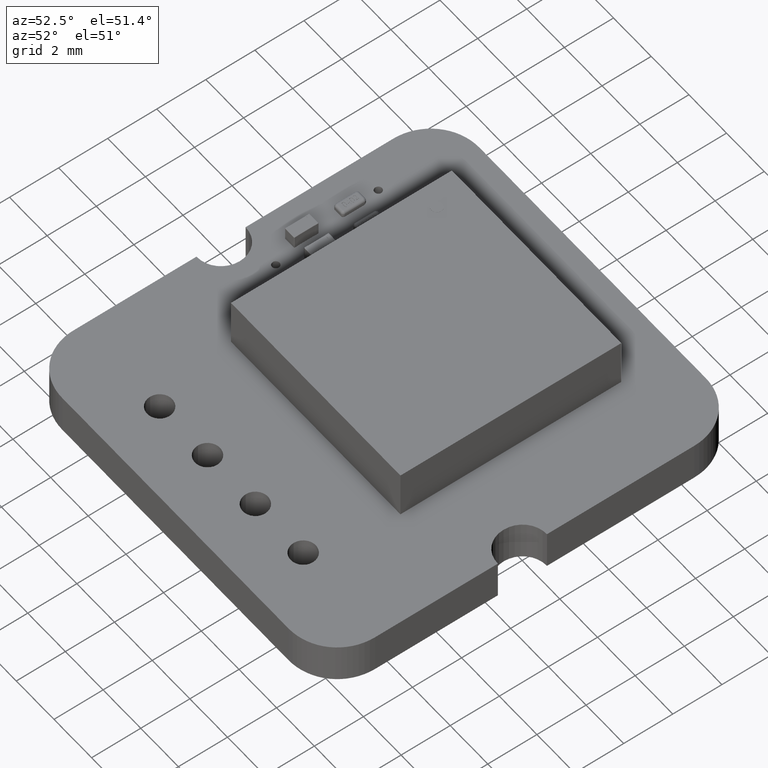
[diagram: clean part render]
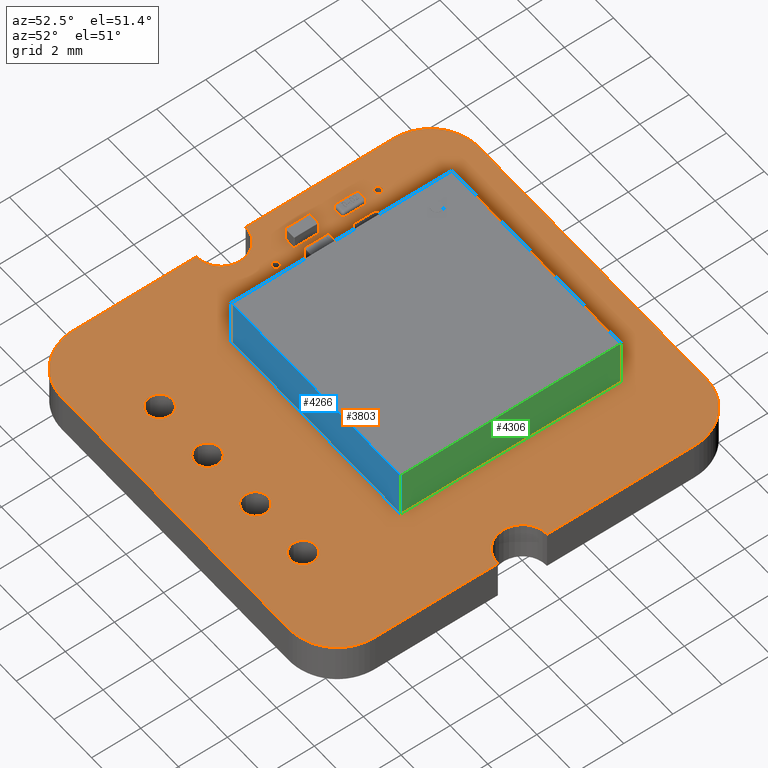
[diagram: same view with three faces highlighted in distinct colors, each labeled with its STEP entity id]
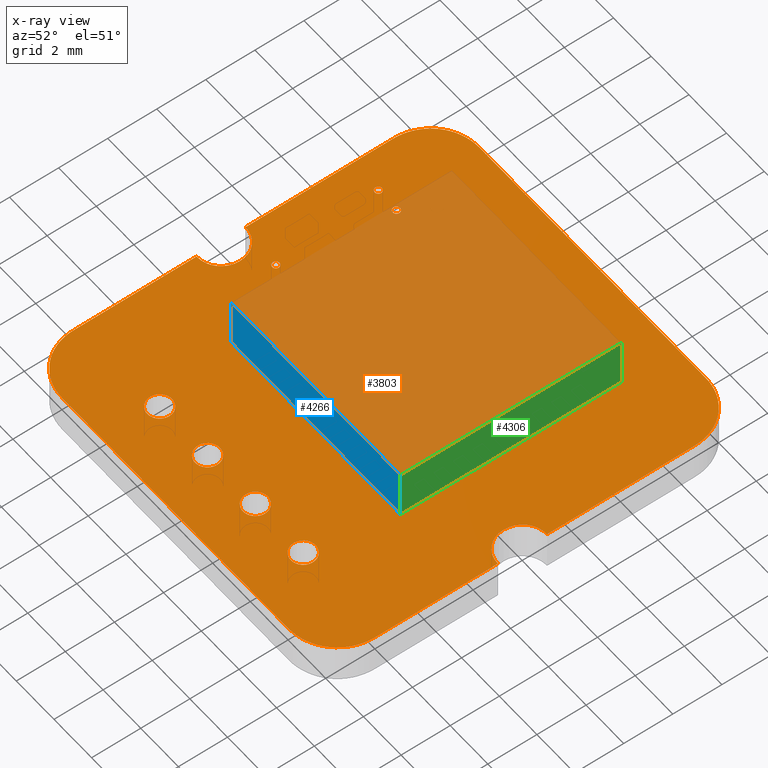
[diagram: x-ray of the same camera — body ghosted, the three highlighted faces saturated]
A machine part, auxiliary view with three faces highlighted in distinct colors.
The next image is the same camera in x-ray (body ghosted, the three faces saturated) — at least one of them is partly hidden behind the body in this view.
Their STEP definitions:

[orange] entity #3803 — the highlighted planar face has unit normal (0, 0, -1).
#55 = VERTEX_POINT('',#56);
#56 = CARTESIAN_POINT('',(14.889,-1.669,0.82));
#62 = EDGE_CURVE('',#55,#63,#65,.T.);
#63 = VERTEX_POINT('',#64);
#64 = CARTESIAN_POINT('',(2.889,-1.669,0.82));
#65 = LINE('',#66,#67);
#66 = CARTESIAN_POINT('',(14.889,-1.669,0.82));
#67 = VECTOR('',#68,1.);
#68 = DIRECTION('',(-1.,0.E+000,0.E+000));
#95 = VERTEX_POINT('',#96);
#96 = CARTESIAN_POINT('',(15.09686,-1.6791,0.82));
#102 = EDGE_CURVE('',#95,#55,#103,.T.);
#103 = LINE('',#104,#105);
#104 = CARTESIAN_POINT('',(15.09686,-1.6791,0.82));
#105 = VECTOR('',#106,1.);
#106 = DIRECTION('',(-0.998821572954,4.853313714442E-002,0.E+000));
#124 = EDGE_CURVE('',#63,#125,#127,.T.);
#125 = VERTEX_POINT('',#126);
#126 = CARTESIAN_POINT('',(2.68114,-1.6791,0.82));
#127 = LINE('',#128,#129);
#128 = CARTESIAN_POINT('',(2.889,-1.669,0.82));
#129 = VECTOR('',#130,1.);
#130 = DIRECTION('',(-0.998821572954,-4.853313714442E-002,0.E+000));
#157 = VERTEX_POINT('',#158);
#158 = CARTESIAN_POINT('',(15.29794,-1.70879,0.82));
#164 = EDGE_CURVE('',#157,#95,#165,.T.);
#165 = LINE('',#166,#167);
#166 = CARTESIAN_POINT('',(15.29794,-1.70879,0.82));
#167 = VECTOR('',#168,1.);
#168 = DIRECTION('',(-0.989274402589,0.146069012397,0.E+000));
#186 = EDGE_CURVE('',#125,#187,#189,.T.);
#187 = VERTEX_POINT('',#188);
#188 = CARTESIAN_POINT('',(2.48006,-1.70879,0.82));
#189 = LINE('',#190,#191);
#190 = CARTESIAN_POINT('',(2.68114,-1.6791,0.82));
#191 = VECTOR('',#192,1.);
#192 = DIRECTION('',(-0.989274402589,-0.146069012397,0.E+000));
#219 = VERTEX_POINT('',#220);
#220 = CARTESIAN_POINT('',(15.49133,-1.75717,0.82));
#226 = EDGE_CURVE('',#219,#157,#227,.T.);
#227 = LINE('',#228,#229);
#228 = CARTESIAN_POINT('',(15.49133,-1.75717,0.82));
#229 = VECTOR('',#230,1.);
#230 = DIRECTION('',(-0.970104127996,0.242689062063,0.E+000));
#248 = EDGE_CURVE('',#187,#249,#251,.T.);
#249 = VERTEX_POINT('',#250);
#250 = CARTESIAN_POINT('',(2.28667,-1.75717,0.82));
#251 = LINE('',#252,#253);
#252 = CARTESIAN_POINT('',(2.48006,-1.70879,0.82));
#253 = VECTOR('',#254,1.);
#254 = DIRECTION('',(-0.970104127996,-0.242689062063,0.E+000));
#281 = VERTEX_POINT('',#282);
#282 = CARTESIAN_POINT('',(15.67611,-1.8233,0.82));
#288 = EDGE_CURVE('',#281,#219,#289,.T.);
#289 = LINE('',#290,#291);
#290 = CARTESIAN_POINT('',(15.67611,-1.8233,0.82));
#291 = VECTOR('',#292,1.);
#292 = DIRECTION('',(-0.941520370828,0.336956067339,0.E+000));
#310 = EDGE_CURVE('',#249,#311,#313,.T.);
#311 = VERTEX_POINT('',#312);
#312 = CARTESIAN_POINT('',(2.10189,-1.8233,0.82));
#313 = LINE('',#314,#315);
#314 = CARTESIAN_POINT('',(2.28667,-1.75717,0.82));
#315 = VECTOR('',#316,1.);
#316 = DIRECTION('',(-0.941520370828,-0.336956067339,0.E+000));
#343 = VERTEX_POINT('',#344);
#344 = CARTESIAN_POINT('',(15.85137,-1.90627,0.82));
#350 = EDGE_CURVE('',#343,#281,#351,.T.);
#351 = LINE('',#352,#353);
#352 = CARTESIAN_POINT('',(15.85137,-1.90627,0.82));
#353 = VECTOR('',#354,1.);
#354 = DIRECTION('',(-0.90383337441,0.42788460045,0.E+000));
#372 = EDGE_CURVE('',#311,#373,#375,.T.);
#373 = VERTEX_POINT('',#374);
#374 = CARTESIAN_POINT('',(1.92663,-1.90627,0.82));
#375 = LINE('',#376,#377);
#376 = CARTESIAN_POINT('',(2.10189,-1.8233,0.82));
#377 = VECTOR('',#378,1.);
#378 = DIRECTION('',(-0.90383337441,-0.42788460045,0.E+000));
#405 = VERTEX_POINT('',#406);
#406 = CARTESIAN_POINT('',(16.0162,-2.00518,0.82));
#412 = EDGE_CURVE('',#405,#343,#413,.T.);
#413 = LINE('',#414,#415);
#414 = CARTESIAN_POINT('',(16.0162,-2.00518,0.82));
#415 = VECTOR('',#416,1.);
#416 = DIRECTION('',(-0.857465383851,0.514541655746,0.E+000));
#434 = EDGE_CURVE('',#373,#435,#437,.T.);
#435 = VERTEX_POINT('',#436);
#436 = CARTESIAN_POINT('',(1.7618,-2.00518,0.82));
#437 = LINE('',#438,#439);
#438 = CARTESIAN_POINT('',(1.92663,-1.90627,0.82));
#439 = VECTOR('',#440,1.);
#440 = DIRECTION('',(-0.857465383851,-0.514541655746,0.E+000));
#467 = VERTEX_POINT('',#468);
#468 = CARTESIAN_POINT('',(16.16967,-2.1191,0.82));
#474 = EDGE_CURVE('',#467,#405,#475,.T.);
#475 = LINE('',#476,#477);
#476 = CARTESIAN_POINT('',(16.16967,-2.1191,0.82));
#477 = VECTOR('',#478,1.);
#478 = DIRECTION('',(-0.802959902094,0.596033049108,0.E+000));
#496 = EDGE_CURVE('',#435,#497,#499,.T.);
#497 = VERTEX_POINT('',#498);
#498 = CARTESIAN_POINT('',(1.60833,-2.1191,0.82));
#499 = LINE('',#500,#501);
#500 = CARTESIAN_POINT('',(1.7618,-2.00518,0.82));
#501 = VECTOR('',#502,1.);
#502 = DIRECTION('',(-0.802959902094,-0.596033049108,0.E+000));
#529 = VERTEX_POINT('',#530);
#530 = CARTESIAN_POINT('',(16.31088,-2.24712,0.82));
#536 = EDGE_CURVE('',#529,#467,#537,.T.);
#537 = LINE('',#538,#539);
#538 = CARTESIAN_POINT('',(16.31088,-2.24712,0.82));
#539 = VECTOR('',#540,1.);
#540 = DIRECTION('',(-0.740860487423,0.671658944833,0.E+000));
#558 = EDGE_CURVE('',#497,#559,#561,.T.);
#559 = VERTEX_POINT('',#560);
#560 = CARTESIAN_POINT('',(1.46712,-2.24712,0.82));
#561 = LINE('',#562,#563);
#562 = CARTESIAN_POINT('',(1.60833,-2.1191,0.82));
#563 = VECTOR('',#564,1.);
#564 = DIRECTION('',(-0.740860487423,-0.671658944833,0.E+000));
#591 = VERTEX_POINT('',#592);
#592 = CARTESIAN_POINT('',(16.4389,-2.38833,0.82));
#598 = EDGE_CURVE('',#591,#529,#599,.T.);
#599 = LINE('',#600,#601);
#600 = CARTESIAN_POINT('',(16.4389,-2.38833,0.82));
#601 = VECTOR('',#602,1.);
#602 = DIRECTION('',(-0.671658944833,0.740860487423,0.E+000));
#620 = EDGE_CURVE('',#559,#621,#623,.T.);
#621 = VERTEX_POINT('',#622);
#622 = CARTESIAN_POINT('',(1.3391,-2.38833,0.82));
#623 = LINE('',#624,#625);
#624 = CARTESIAN_POINT('',(1.46712,-2.24712,0.82));
#625 = VECTOR('',#626,1.);
#626 = DIRECTION('',(-0.671658944833,-0.740860487423,0.E+000));
#653 = VERTEX_POINT('',#654);
#654 = CARTESIAN_POINT('',(16.55282,-2.5418,0.82));
#660 = EDGE_CURVE('',#653,#591,#661,.T.);
#661 = LINE('',#662,#663);
#662 = CARTESIAN_POINT('',(16.55282,-2.5418,0.82));
#663 = VECTOR('',#664,1.);
#664 = DIRECTION('',(-0.596033049108,0.802959902094,0.E+000));
#682 = EDGE_CURVE('',#621,#683,#685,.T.);
#683 = VERTEX_POINT('',#684);
#684 = CARTESIAN_POINT('',(1.22518,-2.5418,0.82));
#685 = LINE('',#686,#687);
#686 = CARTESIAN_POINT('',(1.3391,-2.38833,0.82));
#687 = VECTOR('',#688,1.);
#688 = DIRECTION('',(-0.596033049108,-0.802959902094,0.E+000));
#715 = VERTEX_POINT('',#716);
#716 = CARTESIAN_POINT('',(16.65173,-2.70663,0.82));
#722 = EDGE_CURVE('',#715,#653,#723,.T.);
#723 = LINE('',#724,#725);
#724 = CARTESIAN_POINT('',(16.65173,-2.70663,0.82));
#725 = VECTOR('',#726,1.);
#726 = DIRECTION('',(-0.514541655746,0.857465383851,0.E+000));
#744 = EDGE_CURVE('',#683,#745,#747,.T.);
#745 = VERTEX_POINT('',#746);
#746 = CARTESIAN_POINT('',(1.12627,-2.70663,0.82));
#747 = LINE('',#748,#749);
#748 = CARTESIAN_POINT('',(1.22518,-2.5418,0.82));
#749 = VECTOR('',#750,1.);
#750 = DIRECTION('',(-0.514541655746,-0.857465383851,0.E+000));
#777 = VERTEX_POINT('',#778);
#778 = CARTESIAN_POINT('',(16.7347,-2.88189,0.82));
#784 = EDGE_CURVE('',#777,#715,#785,.T.);
#785 = LINE('',#786,#787);
#786 = CARTESIAN_POINT('',(16.7347,-2.88189,0.82));
#787 = VECTOR('',#788,1.);
#788 = DIRECTION('',(-0.42788460045,0.90383337441,0.E+000));
#806 = EDGE_CURVE('',#745,#807,#809,.T.);
#807 = VERTEX_POINT('',#808);
#808 = CARTESIAN_POINT('',(1.0433,-2.88189,0.82));
#809 = LINE('',#810,#811);
#810 = CARTESIAN_POINT('',(1.12627,-2.70663,0.82));
#811 = VECTOR('',#812,1.);
#812 = DIRECTION('',(-0.42788460045,-0.90383337441,0.E+000));
#839 = VERTEX_POINT('',#840);
#840 = CARTESIAN_POINT('',(16.80083,-3.06667,0.82));
#846 = EDGE_CURVE('',#839,#777,#847,.T.);
#847 = LINE('',#848,#849);
#848 = CARTESIAN_POINT('',(16.80083,-3.06667,0.82));
#849 = VECTOR('',#850,1.);
#850 = DIRECTION('',(-0.336956067339,0.941520370828,0.E+000));
#868 = EDGE_CURVE('',#807,#869,#871,.T.);
#869 = VERTEX_POINT('',#870);
#870 = CARTESIAN_POINT('',(0.97717,-3.06667,0.82));
#871 = LINE('',#872,#873);
#872 = CARTESIAN_POINT('',(1.0433,-2.88189,0.82));
#873 = VECTOR('',#874,1.);
#874 = DIRECTION('',(-0.336956067339,-0.941520370828,0.E+000));
#901 = VERTEX_POINT('',#902);
#902 = CARTESIAN_POINT('',(16.8492,-3.26006,0.82));
#908 = EDGE_CURVE('',#901,#839,#909,.T.);
#909 = LINE('',#910,#911);
#910 = CARTESIAN_POINT('',(16.8492,-3.26006,0.82));
#911 = VECTOR('',#912,1.);
#912 = DIRECTION('',(-0.24264185261,0.970115937073,0.E+000));
#930 = EDGE_CURVE('',#869,#931,#933,.T.);
#931 = VERTEX_POINT('',#932);
#932 = CARTESIAN_POINT('',(0.9288,-3.26006,0.82));
#933 = LINE('',#934,#935);
#934 = CARTESIAN_POINT('',(0.97717,-3.06667,0.82));
#935 = VECTOR('',#936,1.);
#936 = DIRECTION('',(-0.24264185261,-0.970115937073,0.E+000));
#963 = VERTEX_POINT('',#964);
#964 = CARTESIAN_POINT('',(16.8789,-3.46114,0.82));
#970 = EDGE_CURVE('',#963,#901,#971,.T.);
#971 = LINE('',#972,#973);
#972 = CARTESIAN_POINT('',(16.8789,-3.46114,0.82));
#973 = VECTOR('',#974,1.);
#974 = DIRECTION('',(-0.146117160232,0.989267292235,0.E+000));
#992 = EDGE_CURVE('',#931,#993,#995,.T.);
#993 = VERTEX_POINT('',#994);
#994 = CARTESIAN_POINT('',(0.8991,-3.46114,0.82));
#995 = LINE('',#996,#997);
#996 = CARTESIAN_POINT('',(0.9288,-3.26006,0.82));
#997 = VECTOR('',#998,1.);
#998 = DIRECTION('',(-0.146117160232,-0.989267292235,0.E+000));
#1025 = VERTEX_POINT('',#1026);
#1026 = CARTESIAN_POINT('',(16.889,-3.669,0.82));
#1032 = EDGE_CURVE('',#1025,#963,#1033,.T.);
#1033 = LINE('',#1034,#1035);
#1034 = CARTESIAN_POINT('',(16.889,-3.669,0.82));
#1035 = VECTOR('',#1036,1.);
#1036 = DIRECTION('',(-4.853313714442E-002,0.998821572954,0.E+000));
#1054 = EDGE_CURVE('',#993,#1055,#1057,.T.);
#1055 = VERTEX_POINT('',#1056);
#1056 = CARTESIAN_POINT('',(0.889,-3.669,0.82));
#1057 = LINE('',#1058,#1059);
#1058 = CARTESIAN_POINT('',(0.8991,-3.46114,0.82));
#1059 = VECTOR('',#1060,1.);
#1060 = DIRECTION('',(-4.853313714442E-002,-0.998821572954,0.E+000));
#1087 = VERTEX_POINT('',#1088);
#1088 = CARTESIAN_POINT('',(16.889,-9.669,0.82));
#1094 = EDGE_CURVE('',#1087,#1025,#1095,.T.);
#1095 = LINE('',#1096,#1097);
#1096 = CARTESIAN_POINT('',(16.889,-9.669,0.82));
#1097 = VECTOR('',#1098,1.);
#1098 = DIRECTION('',(0.E+000,1.,0.E+000));
#1116 = EDGE_CURVE('',#1055,#1117,#1119,.T.);
#1117 = VERTEX_POINT('',#1118);
#1118 = CARTESIAN_POINT('',(0.889,-9.669,0.82));
#1119 = LINE('',#1120,#1121);
#1120 = CARTESIAN_POINT('',(0.889,-3.669,0.82));
#1121 = VECTOR('',#1122,1.);
#1122 = DIRECTION('',(0.E+000,-1.,0.E+000));
#1149 = VERTEX_POINT('',#1150);
#1150 = CARTESIAN_POINT('',(16.68453,-9.6889,0.82));
#1156 = EDGE_CURVE('',#1149,#1087,#1157,.T.);
#1157 = LINE('',#1158,#1159);
#1158 = CARTESIAN_POINT('',(16.68453,-9.6889,0.82));
#1159 = VECTOR('',#1160,1.);
#1160 = DIRECTION('',(0.995297324502,9.686710401322E-002,0.E+000));
#1178 = EDGE_CURVE('',#1117,#1179,#1181,.T.);
#1179 = VERTEX_POINT('',#1180);
#1180 = CARTESIAN_POINT('',(1.09347,-9.6889,0.82));
#1181 = LINE('',#1182,#1183);
#1182 = CARTESIAN_POINT('',(0.889,-9.669,0.82));
#1183 = VECTOR('',#1184,1.);
#1184 = DIRECTION('',(0.995297324502,-9.686710401322E-002,0.E+000));
#1211 = VERTEX_POINT('',#1212);
#1212 = CARTESIAN_POINT('',(16.49544,-9.74615,0.82));
#1218 = EDGE_CURVE('',#1211,#1149,#1219,.T.);
#1219 = LINE('',#1220,#1221);
#1220 = CARTESIAN_POINT('',(16.49544,-9.74615,0.82));
#1221 = VECTOR('',#1222,1.);
#1222 = DIRECTION('',(0.957094616993,0.289775592696,0.E+000));
#1240 = EDGE_CURVE('',#1179,#1241,#1243,.T.);
#1241 = VERTEX_POINT('',#1242);
#1242 = CARTESIAN_POINT('',(1.28256,-9.74615,0.82));
#1243 = LINE('',#1244,#1245);
#1244 = CARTESIAN_POINT('',(1.09347,-9.6889,0.82));
#1245 = VECTOR('',#1246,1.);
#1246 = DIRECTION('',(0.957094616993,-0.289775592696,0.E+000));
#1273 = VERTEX_POINT('',#1274);
#1274 = CARTESIAN_POINT('',(16.3254,-9.83709,0.82));
#1280 = EDGE_CURVE('',#1273,#1211,#1281,.T.);
#1281 = LINE('',#1282,#1283);
#1282 = CARTESIAN_POINT('',(16.3254,-9.83709,0.82));
#1283 = VECTOR('',#1284,1.);
#1284 = DIRECTION('',(0.881809719663,0.471605362892,0.E+000));
#1302 = EDGE_CURVE('',#1241,#1303,#1305,.T.);
#1303 = VERTEX_POINT('',#1304);
#1304 = CARTESIAN_POINT('',(1.4526,-9.83709,0.82));
#1305 = LINE('',#1306,#1307);
#1306 = CARTESIAN_POINT('',(1.28256,-9.74615,0.82));
#1307 = VECTOR('',#1308,1.);
#1308 = DIRECTION('',(0.881809719663,-0.471605362892,0.E+000));
#1335 = VERTEX_POINT('',#1336);
#1336 = CARTESIAN_POINT('',(16.17806,-9.95806,0.82));
#1342 = EDGE_CURVE('',#1335,#1273,#1343,.T.);
#1343 = LINE('',#1344,#1345);
#1344 = CARTESIAN_POINT('',(16.17806,-9.95806,0.82));
#1345 = VECTOR('',#1346,1.);
#1346 = DIRECTION('',(0.772878764545,0.634553713499,0.E+000));
#1364 = EDGE_CURVE('',#1303,#1365,#1367,.T.);
#1365 = VERTEX_POINT('',#1366);
#1366 = CARTESIAN_POINT('',(1.59994,-9.95806,0.82));
#1367 = LINE('',#1368,#1369);
#1368 = CARTESIAN_POINT('',(1.4526,-9.83709,0.82));
#1369 = VECTOR('',#1370,1.);
#1370 = DIRECTION('',(0.772878764545,-0.634553713499,0.E+000));
#1397 = VERTEX_POINT('',#1398);
#1398 = CARTESIAN_POINT('',(16.05709,-10.1054,0.82));
#1404 = EDGE_CURVE('',#1397,#1335,#1405,.T.);
#1405 = LINE('',#1406,#1407);
#1406 = CARTESIAN_POINT('',(16.05709,-10.1054,0.82));
#1407 = VECTOR('',#1408,1.);
#1408 = DIRECTION('',(0.634553713499,0.772878764545,0.E+000));
#1426 = EDGE_CURVE('',#1365,#1427,#1429,.T.);
#1427 = VERTEX_POINT('',#1428);
#1428 = CARTESIAN_POINT('',(1.72091,-10.1054,0.82));
#1429 = LINE('',#1430,#1431);
#1430 = CARTESIAN_POINT('',(1.59994,-9.95806,0.82));
#1431 = VECTOR('',#1432,1.);
#1432 = DIRECTION('',(0.634553713499,-0.772878764545,0.E+000));
#1459 = VERTEX_POINT('',#1460);
#1460 = CARTESIAN_POINT('',(15.96615,-10.27545,0.82));
#1466 = EDGE_CURVE('',#1459,#1397,#1467,.T.);
#1467 = LINE('',#1468,#1469);
#1468 = CARTESIAN_POINT('',(15.96615,-10.27545,0.82));
#1469 = VECTOR('',#1470,1.);
#1470 = DIRECTION('',(0.47158379735,0.881821252906,0.E+000));
#1488 = EDGE_CURVE('',#1427,#1489,#1491,.T.);
#1489 = VERTEX_POINT('',#1490);
#1490 = CARTESIAN_POINT('',(1.81185,-10.27545,0.82));
#1491 = LINE('',#1492,#1493);
#1492 = CARTESIAN_POINT('',(1.72091,-10.1054,0.82));
#1493 = VECTOR('',#1494,1.);
#1494 = DIRECTION('',(0.47158379735,-0.881821252906,0.E+000));
#1521 = VERTEX_POINT('',#1522);
#1522 = CARTESIAN_POINT('',(15.9089,-10.46453,0.82));
#1528 = EDGE_CURVE('',#1521,#1459,#1529,.T.);
#1529 = LINE('',#1530,#1531);
#1530 = CARTESIAN_POINT('',(15.9089,-10.46453,0.82));
#1531 = VECTOR('',#1532,1.);
#1532 = DIRECTION('',(0.289789631272,0.957090366479,0.E+000));
#1550 = EDGE_CURVE('',#1489,#1551,#1553,.T.);
#1551 = VERTEX_POINT('',#1552);
#1552 = CARTESIAN_POINT('',(1.8691,-10.46453,0.82));
#1553 = LINE('',#1554,#1555);
#1554 = CARTESIAN_POINT('',(1.81185,-10.27545,0.82));
#1555 = VECTOR('',#1556,1.);
#1556 = DIRECTION('',(0.289789631272,-0.957090366479,0.E+000));
#1583 = VERTEX_POINT('',#1584);
#1584 = CARTESIAN_POINT('',(15.889,-10.669,0.82));
#1590 = EDGE_CURVE('',#1583,#1521,#1591,.T.);
#1591 = LINE('',#1592,#1593);
#1592 = CARTESIAN_POINT('',(15.889,-10.669,0.82));
#1593 = VECTOR('',#1594,1.);
#1594 = DIRECTION('',(9.686710401322E-002,0.995297324502,0.E+000));
#1612 = EDGE_CURVE('',#1551,#1613,#1615,.T.);
#1613 = VERTEX_POINT('',#1614);
#1614 = CARTESIAN_POINT('',(1.889,-10.669,0.82));
#1615 = LINE('',#1616,#1617);
#1616 = CARTESIAN_POINT('',(1.8691,-10.46453,0.82));
#1617 = VECTOR('',#1618,1.);
#1618 = DIRECTION('',(9.686710401322E-002,-0.995297324502,0.E+000));
#1645 = VERTEX_POINT('',#1646);
#1646 = CARTESIAN_POINT('',(15.9089,-10.87347,0.82));
#1652 = EDGE_CURVE('',#1645,#1583,#1653,.T.);
#1653 = LINE('',#1654,#1655);
#1654 = CARTESIAN_POINT('',(15.9089,-10.87347,0.82));
#1655 = VECTOR('',#1656,1.);
#1656 = DIRECTION('',(-9.686710401322E-002,0.995297324502,0.E+000));
#1674 = EDGE_CURVE('',#1613,#1675,#1677,.T.);
#1675 = VERTEX_POINT('',#1676);
#1676 = CARTESIAN_POINT('',(1.8691,-10.87347,0.82));
#1677 = LINE('',#1678,#1679);
#1678 = CARTESIAN_POINT('',(1.889,-10.669,0.82));
#1679 = VECTOR('',#1680,1.);
#1680 = DIRECTION('',(-9.686710401322E-002,-0.995297324502,0.E+000));
#1707 = VERTEX_POINT('',#1708);
#1708 = CARTESIAN_POINT('',(15.96615,-11.06255,0.82));
#1714 = EDGE_CURVE('',#1707,#1645,#1715,.T.);
#1715 = LINE('',#1716,#1717);
#1716 = CARTESIAN_POINT('',(15.96615,-11.06255,0.82));
#1717 = VECTOR('',#1718,1.);
#1718 = DIRECTION('',(-0.289789631272,0.957090366479,0.E+000));
#1736 = EDGE_CURVE('',#1675,#1737,#1739,.T.);
#1737 = VERTEX_POINT('',#1738);
#1738 = CARTESIAN_POINT('',(1.81185,-11.06255,0.82));
#1739 = LINE('',#1740,#1741);
#1740 = CARTESIAN_POINT('',(1.8691,-10.87347,0.82));
#1741 = VECTOR('',#1742,1.);
#1742 = DIRECTION('',(-0.289789631272,-0.957090366479,0.E+000));
#1769 = VERTEX_POINT('',#1770);
#1770 = CARTESIAN_POINT('',(16.05709,-11.2326,0.82));
#1776 = EDGE_CURVE('',#1769,#1707,#1777,.T.);
#1777 = LINE('',#1778,#1779);
#1778 = CARTESIAN_POINT('',(16.05709,-11.2326,0.82));
#1779 = VECTOR('',#1780,1.);
#1780 = DIRECTION('',(-0.47158379735,0.881821252906,0.E+000));
#1798 = EDGE_CURVE('',#1737,#1799,#1801,.T.);
#1799 = VERTEX_POINT('',#1800);
#1800 = CARTESIAN_POINT('',(1.72091,-11.2326,0.82));
#1801 = LINE('',#1802,#1803);
#1802 = CARTESIAN_POINT('',(1.81185,-11.06255,0.82));
#1803 = VECTOR('',#1804,1.);
#1804 = DIRECTION('',(-0.47158379735,-0.881821252906,0.E+000));
#1831 = VERTEX_POINT('',#1832);
#1832 = CARTESIAN_POINT('',(16.17806,-11.37994,0.82));
#1838 = EDGE_CURVE('',#1831,#1769,#1839,.T.);
#1839 = LINE('',#1840,#1841);
#1840 = CARTESIAN_POINT('',(16.17806,-11.37994,0.82));
#1841 = VECTOR('',#1842,1.);
#1842 = DIRECTION('',(-0.634553713499,0.772878764545,0.E+000));
#1860 = EDGE_CURVE('',#1799,#1861,#1863,.T.);
#1861 = VERTEX_POINT('',#1862);
#1862 = CARTESIAN_POINT('',(1.59994,-11.37994,0.82));
#1863 = LINE('',#1864,#1865);
#1864 = CARTESIAN_POINT('',(1.72091,-11.2326,0.82));
#1865 = VECTOR('',#1866,1.);
#1866 = DIRECTION('',(-0.634553713499,-0.772878764545,0.E+000));
#1893 = VERTEX_POINT('',#1894);
#1894 = CARTESIAN_POINT('',(16.3254,-11.50091,0.82));
#1900 = EDGE_CURVE('',#1893,#1831,#1901,.T.);
#1901 = LINE('',#1902,#1903);
#1902 = CARTESIAN_POINT('',(16.3254,-11.50091,0.82));
#1903 = VECTOR('',#1904,1.);
#1904 = DIRECTION('',(-0.772878764545,0.634553713499,0.E+000));
#1922 = EDGE_CURVE('',#1861,#1923,#1925,.T.);
#1923 = VERTEX_POINT('',#1924);
#1924 = CARTESIAN_POINT('',(1.4526,-11.50091,0.82));
#1925 = LINE('',#1926,#1927);
#1926 = CARTESIAN_POINT('',(1.59994,-11.37994,0.82));
#1927 = VECTOR('',#1928,1.);
#1928 = DIRECTION('',(-0.772878764545,-0.634553713499,0.E+000));
#1955 = VERTEX_POINT('',#1956);
#1956 = CARTESIAN_POINT('',(16.49544,-11.59185,0.82));
#1962 = EDGE_CURVE('',#1955,#1893,#1963,.T.);
#1963 = LINE('',#1964,#1965);
#1964 = CARTESIAN_POINT('',(16.49544,-11.59185,0.82));
#1965 = VECTOR('',#1966,1.);
#1966 = DIRECTION('',(-0.881809719663,0.471605362892,0.E+000));
#1984 = EDGE_CURVE('',#1923,#1985,#1987,.T.);
#1985 = VERTEX_POINT('',#1986);
#1986 = CARTESIAN_POINT('',(1.28256,-11.59185,0.82));
#1987 = LINE('',#1988,#1989);
#1988 = CARTESIAN_POINT('',(1.4526,-11.50091,0.82));
#1989 = VECTOR('',#1990,1.);
#1990 = DIRECTION('',(-0.881809719663,-0.471605362892,0.E+000));
#2017 = VERTEX_POINT('',#2018);
#2018 = CARTESIAN_POINT('',(16.68453,-11.6491,0.82));
#2024 = EDGE_CURVE('',#2017,#1955,#2025,.T.);
#2025 = LINE('',#2026,#2027);
#2026 = CARTESIAN_POINT('',(16.68453,-11.6491,0.82));
#2027 = VECTOR('',#2028,1.);
#2028 = DIRECTION('',(-0.957094616993,0.289775592696,0.E+000));
#2046 = EDGE_CURVE('',#1985,#2047,#2049,.T.);
#2047 = VERTEX_POINT('',#2048);
#2048 = CARTESIAN_POINT('',(1.09347,-11.6491,0.82));
#2049 = LINE('',#2050,#2051);
#2050 = CARTESIAN_POINT('',(1.28256,-11.59185,0.82));
#2051 = VECTOR('',#2052,1.);
#2052 = DIRECTION('',(-0.957094616993,-0.289775592696,0.E+000));
#2079 = VERTEX_POINT('',#2080);
#2080 = CARTESIAN_POINT('',(16.889,-11.669,0.82));
#2086 = EDGE_CURVE('',#2079,#2017,#2087,.T.);
#2087 = LINE('',#2088,#2089);
#2088 = CARTESIAN_POINT('',(16.889,-11.669,0.82));
#2089 = VECTOR('',#2090,1.);
#2090 = DIRECTION('',(-0.995297324502,9.686710401322E-002,0.E+000));
#2108 = EDGE_CURVE('',#2047,#2109,#2111,.T.);
#2109 = VERTEX_POINT('',#2110);
#2110 = CARTESIAN_POINT('',(0.889,-11.669,0.82));
#2111 = LINE('',#2112,#2113);
#2112 = CARTESIAN_POINT('',(1.09347,-11.6491,0.82));
#2113 = VECTOR('',#2114,1.);
#2114 = DIRECTION('',(-0.995297324502,-9.686710401322E-002,0.E+000));
#2141 = VERTEX_POINT('',#2142);
#2142 = CARTESIAN_POINT('',(16.889,-16.669,0.82));
#2148 = EDGE_CURVE('',#2141,#2079,#2149,.T.);
#2149 = LINE('',#2150,#2151);
#2150 = CARTESIAN_POINT('',(16.889,-16.669,0.82));
#2151 = VECTOR('',#2152,1.);
#2152 = DIRECTION('',(0.E+000,1.,0.E+000));
#2170 = EDGE_CURVE('',#2109,#2171,#2173,.T.);
#2171 = VERTEX_POINT('',#2172);
#2172 = CARTESIAN_POINT('',(0.889,-16.669,0.82));
#2173 = LINE('',#2174,#2175);
#2174 = CARTESIAN_POINT('',(0.889,-11.669,0.82));
#2175 = VECTOR('',#2176,1.);
#2176 = DIRECTION('',(0.E+000,-1.,0.E+000));
#2203 = VERTEX_POINT('',#2204);
#2204 = CARTESIAN_POINT('',(16.8789,-16.87686,0.82));
#2210 = EDGE_CURVE('',#2203,#2141,#2211,.T.);
#2211 = LINE('',#2212,#2213);
#2212 = CARTESIAN_POINT('',(16.8789,-16.87686,0.82));
#2213 = VECTOR('',#2214,1.);
#2214 = DIRECTION('',(4.853313714442E-002,0.998821572954,0.E+000));
#2232 = EDGE_CURVE('',#2171,#2233,#2235,.T.);
#2233 = VERTEX_POINT('',#2234);
#2234 = CARTESIAN_POINT('',(0.8991,-16.87686,0.82));
#2235 = LINE('',#2236,#2237);
#2236 = CARTESIAN_POINT('',(0.889,-16.669,0.82));
#2237 = VECTOR('',#2238,1.);
#2238 = DIRECTION('',(4.853313714442E-002,-0.998821572954,0.E+000));
#2265 = VERTEX_POINT('',#2266);
#2266 = CARTESIAN_POINT('',(16.8492,-17.07794,0.82));
#2272 = EDGE_CURVE('',#2265,#2203,#2273,.T.);
#2273 = LINE('',#2274,#2275);
#2274 = CARTESIAN_POINT('',(16.8492,-17.07794,0.82));
#2275 = VECTOR('',#2276,1.);
#2276 = DIRECTION('',(0.146117160232,0.989267292235,0.E+000));
#2294 = EDGE_CURVE('',#2233,#2295,#2297,.T.);
#2295 = VERTEX_POINT('',#2296);
#2296 = CARTESIAN_POINT('',(0.9288,-17.07794,0.82));
#2297 = LINE('',#2298,#2299);
#2298 = CARTESIAN_POINT('',(0.8991,-16.87686,0.82));
#2299 = VECTOR('',#2300,1.);
#2300 = DIRECTION('',(0.146117160232,-0.989267292235,0.E+000));
#2327 = VERTEX_POINT('',#2328);
#2328 = CARTESIAN_POINT('',(16.80083,-17.27133,0.82));
#2334 = EDGE_CURVE('',#2327,#2265,#2335,.T.);
#2335 = LINE('',#2336,#2337);
#2336 = CARTESIAN_POINT('',(16.80083,-17.27133,0.82));
#2337 = VECTOR('',#2338,1.);
#2338 = DIRECTION('',(0.24264185261,0.970115937073,0.E+000));
#2356 = EDGE_CURVE('',#2295,#2357,#2359,.T.);
#2357 = VERTEX_POINT('',#2358);
#2358 = CARTESIAN_POINT('',(0.97717,-17.27133,0.82));
#2359 = LINE('',#2360,#2361);
#2360 = CARTESIAN_POINT('',(0.9288,-17.07794,0.82));
#2361 = VECTOR('',#2362,1.);
#2362 = DIRECTION('',(0.24264185261,-0.970115937073,0.E+000));
#2389 = VERTEX_POINT('',#2390);
#2390 = CARTESIAN_POINT('',(16.7347,-17.45611,0.82));
#2396 = EDGE_CURVE('',#2389,#2327,#2397,.T.);
#2397 = LINE('',#2398,#2399);
#2398 = CARTESIAN_POINT('',(16.7347,-17.45611,0.82));
#2399 = VECTOR('',#2400,1.);
#2400 = DIRECTION('',(0.336956067339,0.941520370828,0.E+000));
#2418 = EDGE_CURVE('',#2357,#2419,#2421,.T.);
#2419 = VERTEX_POINT('',#2420);
#2420 = CARTESIAN_POINT('',(1.0433,-17.45611,0.82));
#2421 = LINE('',#2422,#2423);
#2422 = CARTESIAN_POINT('',(0.97717,-17.27133,0.82));
#2423 = VECTOR('',#2424,1.);
#2424 = DIRECTION('',(0.336956067339,-0.941520370828,0.E+000));
#2451 = VERTEX_POINT('',#2452);
#2452 = CARTESIAN_POINT('',(16.65173,-17.63137,0.82));
#2458 = EDGE_CURVE('',#2451,#2389,#2459,.T.);
#2459 = LINE('',#2460,#2461);
#2460 = CARTESIAN_POINT('',(16.65173,-17.63137,0.82));
#2461 = VECTOR('',#2462,1.);
#2462 = DIRECTION('',(0.42788460045,0.90383337441,0.E+000));
#2480 = EDGE_CURVE('',#2419,#2481,#2483,.T.);
#2481 = VERTEX_POINT('',#2482);
#2482 = CARTESIAN_POINT('',(1.12627,-17.63137,0.82));
#2483 = LINE('',#2484,#2485);
#2484 = CARTESIAN_POINT('',(1.0433,-17.45611,0.82));
#2485 = VECTOR('',#2486,1.);
#2486 = DIRECTION('',(0.42788460045,-0.90383337441,0.E+000));
#2513 = VERTEX_POINT('',#2514);
#2514 = CARTESIAN_POINT('',(16.55282,-17.7962,0.82));
#2520 = EDGE_CURVE('',#2513,#2451,#2521,.T.);
#2521 = LINE('',#2522,#2523);
#2522 = CARTESIAN_POINT('',(16.55282,-17.7962,0.82));
#2523 = VECTOR('',#2524,1.);
#2524 = DIRECTION('',(0.514541655746,0.857465383851,0.E+000));
#2542 = EDGE_CURVE('',#2481,#2543,#2545,.T.);
#2543 = VERTEX_POINT('',#2544);
#2544 = CARTESIAN_POINT('',(1.22518,-17.7962,0.82));
#2545 = LINE('',#2546,#2547);
#2546 = CARTESIAN_POINT('',(1.12627,-17.63137,0.82));
#2547 = VECTOR('',#2548,1.);
#2548 = DIRECTION('',(0.514541655746,-0.857465383851,0.E+000));
#2575 = VERTEX_POINT('',#2576);
#2576 = CARTESIAN_POINT('',(16.4389,-17.94967,0.82));
#2582 = EDGE_CURVE('',#2575,#2513,#2583,.T.);
#2583 = LINE('',#2584,#2585);
#2584 = CARTESIAN_POINT('',(16.4389,-17.94967,0.82));
#2585 = VECTOR('',#2586,1.);
#2586 = DIRECTION('',(0.596033049108,0.802959902094,0.E+000));
#2604 = EDGE_CURVE('',#2543,#2605,#2607,.T.);
#2605 = VERTEX_POINT('',#2606);
#2606 = CARTESIAN_POINT('',(1.3391,-17.94967,0.82));
#2607 = LINE('',#2608,#2609);
#2608 = CARTESIAN_POINT('',(1.22518,-17.7962,0.82));
#2609 = VECTOR('',#2610,1.);
#2610 = DIRECTION('',(0.596033049108,-0.802959902094,0.E+000));
#2637 = VERTEX_POINT('',#2638);
#2638 = CARTESIAN_POINT('',(16.31088,-18.09088,0.82));
#2644 = EDGE_CURVE('',#2637,#2575,#2645,.T.);
#2645 = LINE('',#2646,#2647);
#2646 = CARTESIAN_POINT('',(16.31088,-18.09088,0.82));
#2647 = VECTOR('',#2648,1.);
#2648 = DIRECTION('',(0.671658944833,0.740860487423,0.E+000));
#2666 = EDGE_CURVE('',#2605,#2667,#2669,.T.);
#2667 = VERTEX_POINT('',#2668);
#2668 = CARTESIAN_POINT('',(1.46712,-18.09088,0.82));
#2669 = LINE('',#2670,#2671);
#2670 = CARTESIAN_POINT('',(1.3391,-17.94967,0.82));
#2671 = VECTOR('',#2672,1.);
#2672 = DIRECTION('',(0.671658944833,-0.740860487423,0.E+000));
#2699 = VERTEX_POINT('',#2700);
#2700 = CARTESIAN_POINT('',(16.16967,-18.2189,0.82));
#2706 = EDGE_CURVE('',#2699,#2637,#2707,.T.);
#2707 = LINE('',#2708,#2709);
#2708 = CARTESIAN_POINT('',(16.16967,-18.2189,0.82));
#2709 = VECTOR('',#2710,1.);
#2710 = DIRECTION('',(0.740860487423,0.671658944833,0.E+000));
#2728 = EDGE_CURVE('',#2667,#2729,#2731,.T.);
#2729 = VERTEX_POINT('',#2730);
#2730 = CARTESIAN_POINT('',(1.60833,-18.2189,0.82));
#2731 = LINE('',#2732,#2733);
#2732 = CARTESIAN_POINT('',(1.46712,-18.09088,0.82));
#2733 = VECTOR('',#2734,1.);
#2734 = DIRECTION('',(0.740860487423,-0.671658944833,0.E+000));
#2761 = VERTEX_POINT('',#2762);
#2762 = CARTESIAN_POINT('',(16.0162,-18.33282,0.82));
#2768 = EDGE_CURVE('',#2761,#2699,#2769,.T.);
#2769 = LINE('',#2770,#2771);
#2770 = CARTESIAN_POINT('',(16.0162,-18.33282,0.82));
#2771 = VECTOR('',#2772,1.);
#2772 = DIRECTION('',(0.802959902094,0.596033049108,0.E+000));
#2790 = EDGE_CURVE('',#2729,#2791,#2793,.T.);
#2791 = VERTEX_POINT('',#2792);
#2792 = CARTESIAN_POINT('',(1.7618,-18.33282,0.82));
#2793 = LINE('',#2794,#2795);
#2794 = CARTESIAN_POINT('',(1.60833,-18.2189,0.82));
#2795 = VECTOR('',#2796,1.);
#2796 = DIRECTION('',(0.802959902094,-0.596033049108,0.E+000));
#2823 = VERTEX_POINT('',#2824);
#2824 = CARTESIAN_POINT('',(15.85137,-18.43173,0.82));
#2830 = EDGE_CURVE('',#2823,#2761,#2831,.T.);
#2831 = LINE('',#2832,#2833);
#2832 = CARTESIAN_POINT('',(15.85137,-18.43173,0.82));
#2833 = VECTOR('',#2834,1.);
#2834 = DIRECTION('',(0.857465383851,0.514541655746,0.E+000));
#2852 = EDGE_CURVE('',#2791,#2853,#2855,.T.);
#2853 = VERTEX_POINT('',#2854);
#2854 = CARTESIAN_POINT('',(1.92663,-18.43173,0.82));
#2855 = LINE('',#2856,#2857);
#2856 = CARTESIAN_POINT('',(1.7618,-18.33282,0.82));
#2857 = VECTOR('',#2858,1.);
#2858 = DIRECTION('',(0.857465383851,-0.514541655746,0.E+000));
#2885 = VERTEX_POINT('',#2886);
#2886 = CARTESIAN_POINT('',(15.67611,-18.5147,0.82));
#2892 = EDGE_CURVE('',#2885,#2823,#2893,.T.);
#2893 = LINE('',#2894,#2895);
#2894 = CARTESIAN_POINT('',(15.67611,-18.5147,0.82));
#2895 = VECTOR('',#2896,1.);
#2896 = DIRECTION('',(0.90383337441,0.42788460045,0.E+000));
#2914 = EDGE_CURVE('',#2853,#2915,#2917,.T.);
#2915 = VERTEX_POINT('',#2916);
#2916 = CARTESIAN_POINT('',(2.10189,-18.5147,0.82));
#2917 = LINE('',#2918,#2919);
#2918 = CARTESIAN_POINT('',(1.92663,-18.43173,0.82));
#2919 = VECTOR('',#2920,1.);
#2920 = DIRECTION('',(0.90383337441,-0.42788460045,0.E+000));
#2947 = VERTEX_POINT('',#2948);
#2948 = CARTESIAN_POINT('',(15.49133,-18.58083,0.82));
#2954 = EDGE_CURVE('',#2947,#2885,#2955,.T.);
#2955 = LINE('',#2956,#2957);
#2956 = CARTESIAN_POINT('',(15.49133,-18.58083,0.82));
#2957 = VECTOR('',#2958,1.);
#2958 = DIRECTION('',(0.941520370828,0.336956067339,0.E+000));
#2976 = EDGE_CURVE('',#2915,#2977,#2979,.T.);
#2977 = VERTEX_POINT('',#2978);
#2978 = CARTESIAN_POINT('',(2.28667,-18.58083,0.82));
#2979 = LINE('',#2980,#2981);
#2980 = CARTESIAN_POINT('',(2.10189,-18.5147,0.82));
#2981 = VECTOR('',#2982,1.);
#2982 = DIRECTION('',(0.941520370828,-0.336956067339,0.E+000));
#3009 = VERTEX_POINT('',#3010);
#3010 = CARTESIAN_POINT('',(15.29794,-18.62921,0.82));
#3016 = EDGE_CURVE('',#3009,#2947,#3017,.T.);
#3017 = LINE('',#3018,#3019);
#3018 = CARTESIAN_POINT('',(15.29794,-18.62921,0.82));
#3019 = VECTOR('',#3020,1.);
#3020 = DIRECTION('',(0.970104127996,0.242689062063,0.E+000));
#3038 = EDGE_CURVE('',#2977,#3039,#3041,.T.);
#3039 = VERTEX_POINT('',#3040);
#3040 = CARTESIAN_POINT('',(2.48006,-18.62921,0.82));
#3041 = LINE('',#3042,#3043);
#3042 = CARTESIAN_POINT('',(2.28667,-18.58083,0.82));
#3043 = VECTOR('',#3044,1.);
#3044 = DIRECTION('',(0.970104127996,-0.242689062063,0.E+000));
#3071 = VERTEX_POINT('',#3072);
#3072 = CARTESIAN_POINT('',(15.09686,-18.6589,0.82));
#3078 = EDGE_CURVE('',#3071,#3009,#3079,.T.);
#3079 = LINE('',#3080,#3081);
#3080 = CARTESIAN_POINT('',(15.09686,-18.6589,0.82));
#3081 = VECTOR('',#3082,1.);
#3082 = DIRECTION('',(0.989274402589,0.146069012397,0.E+000));
#3100 = EDGE_CURVE('',#3039,#3101,#3103,.T.);
#3101 = VERTEX_POINT('',#3102);
#3102 = CARTESIAN_POINT('',(2.68114,-18.6589,0.82));
#3103 = LINE('',#3104,#3105);
#3104 = CARTESIAN_POINT('',(2.48006,-18.62921,0.82));
#3105 = VECTOR('',#3106,1.);
#3106 = DIRECTION('',(0.989274402589,-0.146069012397,0.E+000));
#3133 = VERTEX_POINT('',#3134);
#3134 = CARTESIAN_POINT('',(14.889,-18.669,0.82));
#3140 = EDGE_CURVE('',#3133,#3071,#3141,.T.);
#3141 = LINE('',#3142,#3143);
#3142 = CARTESIAN_POINT('',(14.889,-18.669,0.82));
#3143 = VECTOR('',#3144,1.);
#3144 = DIRECTION('',(0.998821572954,4.853313714441E-002,0.E+000));
#3162 = EDGE_CURVE('',#3101,#3163,#3165,.T.);
#3163 = VERTEX_POINT('',#3164);
#3164 = CARTESIAN_POINT('',(2.889,-18.669,0.82));
#3165 = LINE('',#3166,#3167);
#3166 = CARTESIAN_POINT('',(2.68114,-18.6589,0.82));
#3167 = VECTOR('',#3168,1.);
#3168 = DIRECTION('',(0.998821572954,-4.853313714441E-002,0.E+000));
#3193 = EDGE_CURVE('',#3163,#3133,#3194,.T.);
#3194 = LINE('',#3195,#3196);
#3195 = CARTESIAN_POINT('',(2.889,-18.669,0.82));
#3196 = VECTOR('',#3197,1.);
#3197 = DIRECTION('',(1.,0.E+000,0.E+000));
#3226 = VERTEX_POINT('',#3227);
#3227 = CARTESIAN_POINT('',(3.45053,-5.37591,0.82));
#3233 = EDGE_CURVE('',#3234,#3226,#3236,.T.);
#3234 = VERTEX_POINT('',#3235);
#3235 = CARTESIAN_POINT('',(3.15053,-5.37591,0.82));
#3236 = CIRCLE('',#3237,0.15);
#3237 = AXIS2_PLACEMENT_3D('',#3238,#3239,#3240);
#3238 = CARTESIAN_POINT('',(3.30053,-5.37591,0.82));
#3239 = DIRECTION('',(0.E+000,0.E+000,1.));
#3240 = DIRECTION('',(1.,0.E+000,-0.E+000));
#3255 = EDGE_CURVE('',#3226,#3234,#3256,.T.);
#3256 = CIRCLE('',#3257,0.15);
#3257 = AXIS2_PLACEMENT_3D('',#3258,#3259,#3260);
#3258 = CARTESIAN_POINT('',(3.30053,-5.37591,0.82));
#3259 = DIRECTION('',(0.E+000,0.E+000,1.));
#3260 = DIRECTION('',(1.,0.E+000,-0.E+000));
#3291 = VERTEX_POINT('',#3292);
#3292 = CARTESIAN_POINT('',(2.435,-5.334,0.82));
#3298 = EDGE_CURVE('',#3299,#3291,#3301,.T.);
#3299 = VERTEX_POINT('',#3300);
#3300 = CARTESIAN_POINT('',(2.135,-5.334,0.82));
#3301 = CIRCLE('',#3302,0.15);
#3302 = AXIS2_PLACEMENT_3D('',#3303,#3304,#3305);
#3303 = CARTESIAN_POINT('',(2.285,-5.334,0.82));
#3304 = DIRECTION('',(0.E+000,0.E+000,1.));
#3305 = DIRECTION('',(1.,0.E+000,-0.E+000));
#3320 = EDGE_CURVE('',#3291,#3299,#3321,.T.);
#3321 = CIRCLE('',#3322,0.15);
#3322 = AXIS2_PLACEMENT_3D('',#3323,#3324,#3325);
#3323 = CARTESIAN_POINT('',(2.285,-5.334,0.82));
#3324 = DIRECTION('',(0.E+000,0.E+000,1.));
#3325 = DIRECTION('',(1.,0.E+000,-0.E+000));
#3356 = VERTEX_POINT('',#3357);
#3357 = CARTESIAN_POINT('',(2.868,-9.84065,0.82));
#3363 = EDGE_CURVE('',#3364,#3356,#3366,.T.);
#3364 = VERTEX_POINT('',#3365);
#3365 = CARTESIAN_POINT('',(2.568,-9.84065,0.82));
#3366 = CIRCLE('',#3367,0.15);
#3367 = AXIS2_PLACEMENT_3D('',#3368,#3369,#3370);
#3368 = CARTESIAN_POINT('',(2.718,-9.84065,0.82));
#3369 = DIRECTION('',(0.E+000,0.E+000,1.));
#3370 = DIRECTION('',(1.,0.E+000,-0.E+000));
#3385 = EDGE_CURVE('',#3356,#3364,#3386,.T.);
#3386 = CIRCLE('',#3387,0.15);
#3387 = AXIS2_PLACEMENT_3D('',#3388,#3389,#3390);
#3388 = CARTESIAN_POINT('',(2.718,-9.84065,0.82));
#3389 = DIRECTION('',(0.E+000,0.E+000,1.));
#3390 = DIRECTION('',(1.,0.E+000,-0.E+000));
#3421 = VERTEX_POINT('',#3422);
#3422 = CARTESIAN_POINT('',(5.587,-16.383,0.82));
#3428 = EDGE_CURVE('',#3429,#3421,#3431,.T.);
#3429 = VERTEX_POINT('',#3430);
#3430 = CARTESIAN_POINT('',(4.571,-16.383,0.82));
#3431 = CIRCLE('',#3432,0.508);
#3432 = AXIS2_PLACEMENT_3D('',#3433,#3434,#3435);
#3433 = CARTESIAN_POINT('',(5.079,-16.383,0.82));
#3434 = DIRECTION('',(0.E+000,0.E+000,1.));
#3435 = DIRECTION('',(1.,0.E+000,-0.E+000));
#3450 = EDGE_CURVE('',#3421,#3429,#3451,.T.);
#3451 = CIRCLE('',#3452,0.508);
#3452 = AXIS2_PLACEMENT_3D('',#3453,#3454,#3455);
#3453 = CARTESIAN_POINT('',(5.079,-16.383,0.82));
#3454 = DIRECTION('',(0.E+000,0.E+000,1.));
#3455 = DIRECTION('',(1.,0.E+000,-0.E+000));
#3486 = VERTEX_POINT('',#3487);
#3487 = CARTESIAN_POINT('',(10.667,-16.383,0.82));
#3493 = EDGE_CURVE('',#3494,#3486,#3496,.T.);
#3494 = VERTEX_POINT('',#3495);
#3495 = CARTESIAN_POINT('',(9.651,-16.383,0.82));
#3496 = CIRCLE('',#3497,0.508);
#3497 = AXIS2_PLACEMENT_3D('',#3498,#3499,#3500);
#3498 = CARTESIAN_POINT('',(10.159,-16.383,0.82));
#3499 = DIRECTION('',(0.E+000,0.E+000,1.));
#3500 = DIRECTION('',(1.,0.E+000,-0.E+000));
#3515 = EDGE_CURVE('',#3486,#3494,#3516,.T.);
#3516 = CIRCLE('',#3517,0.508);
#3517 = AXIS2_PLACEMENT_3D('',#3518,#3519,#3520);
#3518 = CARTESIAN_POINT('',(10.159,-16.383,0.82));
#3519 = DIRECTION('',(0.E+000,0.E+000,1.));
#3520 = DIRECTION('',(1.,0.E+000,-0.E+000));
#3551 = VERTEX_POINT('',#3552);
#3552 = CARTESIAN_POINT('',(8.127,-16.383,0.82));
#3558 = EDGE_CURVE('',#3559,#3551,#3561,.T.);
#3559 = VERTEX_POINT('',#3560);
#3560 = CARTESIAN_POINT('',(7.111,-16.383,0.82));
#3561 = CIRCLE('',#3562,0.508);
#3562 = AXIS2_PLACEMENT_3D('',#3563,#3564,#3565);
#3563 = CARTESIAN_POINT('',(7.619,-16.383,0.82));
#3564 = DIRECTION('',(0.E+000,0.E+000,1.));
#3565 = DIRECTION('',(1.,0.E+000,-0.E+000));
#3580 = EDGE_CURVE('',#3551,#3559,#3581,.T.);
#3581 = CIRCLE('',#3582,0.508);
#3582 = AXIS2_PLACEMENT_3D('',#3583,#3584,#3585);
#3583 = CARTESIAN_POINT('',(7.619,-16.383,0.82));
#3584 = DIRECTION('',(0.E+000,0.E+000,1.));
#3585 = DIRECTION('',(1.,0.E+000,-0.E+000));
#3616 = VERTEX_POINT('',#3617);
#3617 = CARTESIAN_POINT('',(13.207,-16.383,0.82));
#3623 = EDGE_CURVE('',#3624,#3616,#3626,.T.);
#3624 = VERTEX_POINT('',#3625);
#3625 = CARTESIAN_POINT('',(12.191,-16.383,0.82));
#3626 = CIRCLE('',#3627,0.508);
#3627 = AXIS2_PLACEMENT_3D('',#3628,#3629,#3630);
#3628 = CARTESIAN_POINT('',(12.699,-16.383,0.82));
#3629 = DIRECTION('',(0.E+000,0.E+000,1.));
#3630 = DIRECTION('',(1.,0.E+000,-0.E+000));
#3645 = EDGE_CURVE('',#3616,#3624,#3646,.T.);
#3646 = CIRCLE('',#3647,0.508);
#3647 = AXIS2_PLACEMENT_3D('',#3648,#3649,#3650);
#3648 = CARTESIAN_POINT('',(12.699,-16.383,0.82));
#3649 = DIRECTION('',(0.E+000,0.E+000,1.));
#3650 = DIRECTION('',(1.,0.E+000,-0.E+000));
#3803 = ADVANCED_FACE('',(#3804,#3908,#3912,#3916,#3920,#3924,#3928,
    #3932),#3936,.F.);
#3804 = FACE_BOUND('',#3805,.F.);
#3805 = EDGE_LOOP('',(#3806,#3807,#3808,#3809,#3810,#3811,#3812,#3813,
    #3814,#3815,#3816,#3817,#3818,#3819,#3820,#3821,#3822,#3823,#3824,
    #3825,#3826,#3827,#3828,#3829,#3830,#3831,#3832,#3833,#3834,#3835,
    #3836,#3837,#3838,#3839,#3840,#3841,#3842,#3843,#3844,#3845,#3846,
    #3847,#3848,#3849,#3850,#3851,#3852,#3853,#3854,#3855,#3856,#3857,
    #3858,#3859,#3860,#3861,#3862,#3863,#3864,#3865,#3866,#3867,#3868,
    #3869,#3870,#3871,#3872,#3873,#3874,#3875,#3876,#3877,#3878,#3879,
    #3880,#3881,#3882,#3883,#3884,#3885,#3886,#3887,#3888,#3889,#3890,
    #3891,#3892,#3893,#3894,#3895,#3896,#3897,#3898,#3899,#3900,#3901,
    #3902,#3903,#3904,#3905,#3906,#3907));
#3806 = ORIENTED_EDGE('',*,*,#62,.F.);
#3807 = ORIENTED_EDGE('',*,*,#102,.F.);
#3808 = ORIENTED_EDGE('',*,*,#164,.F.);
#3809 = ORIENTED_EDGE('',*,*,#226,.F.);
#3810 = ORIENTED_EDGE('',*,*,#288,.F.);
#3811 = ORIENTED_EDGE('',*,*,#350,.F.);
#3812 = ORIENTED_EDGE('',*,*,#412,.F.);
#3813 = ORIENTED_EDGE('',*,*,#474,.F.);
#3814 = ORIENTED_EDGE('',*,*,#536,.F.);
#3815 = ORIENTED_EDGE('',*,*,#598,.F.);
#3816 = ORIENTED_EDGE('',*,*,#660,.F.);
#3817 = ORIENTED_EDGE('',*,*,#722,.F.);
#3818 = ORIENTED_EDGE('',*,*,#784,.F.);
#3819 = ORIENTED_EDGE('',*,*,#846,.F.);
#3820 = ORIENTED_EDGE('',*,*,#908,.F.);
#3821 = ORIENTED_EDGE('',*,*,#970,.F.);
#3822 = ORIENTED_EDGE('',*,*,#1032,.F.);
#3823 = ORIENTED_EDGE('',*,*,#1094,.F.);
#3824 = ORIENTED_EDGE('',*,*,#1156,.F.);
#3825 = ORIENTED_EDGE('',*,*,#1218,.F.);
#3826 = ORIENTED_EDGE('',*,*,#1280,.F.);
#3827 = ORIENTED_EDGE('',*,*,#1342,.F.);
#3828 = ORIENTED_EDGE('',*,*,#1404,.F.);
#3829 = ORIENTED_EDGE('',*,*,#1466,.F.);
#3830 = ORIENTED_EDGE('',*,*,#1528,.F.);
#3831 = ORIENTED_EDGE('',*,*,#1590,.F.);
#3832 = ORIENTED_EDGE('',*,*,#1652,.F.);
#3833 = ORIENTED_EDGE('',*,*,#1714,.F.);
#3834 = ORIENTED_EDGE('',*,*,#1776,.F.);
#3835 = ORIENTED_EDGE('',*,*,#1838,.F.);
#3836 = ORIENTED_EDGE('',*,*,#1900,.F.);
#3837 = ORIENTED_EDGE('',*,*,#1962,.F.);
#3838 = ORIENTED_EDGE('',*,*,#2024,.F.);
#3839 = ORIENTED_EDGE('',*,*,#2086,.F.);
#3840 = ORIENTED_EDGE('',*,*,#2148,.F.);
#3841 = ORIENTED_EDGE('',*,*,#2210,.F.);
#3842 = ORIENTED_EDGE('',*,*,#2272,.F.);
#3843 = ORIENTED_EDGE('',*,*,#2334,.F.);
#3844 = ORIENTED_EDGE('',*,*,#2396,.F.);
#3845 = ORIENTED_EDGE('',*,*,#2458,.F.);
#3846 = ORIENTED_EDGE('',*,*,#2520,.F.);
#3847 = ORIENTED_EDGE('',*,*,#2582,.F.);
#3848 = ORIENTED_EDGE('',*,*,#2644,.F.);
#3849 = ORIENTED_EDGE('',*,*,#2706,.F.);
#3850 = ORIENTED_EDGE('',*,*,#2768,.F.);
#3851 = ORIENTED_EDGE('',*,*,#2830,.F.);
#3852 = ORIENTED_EDGE('',*,*,#2892,.F.);
#3853 = ORIENTED_EDGE('',*,*,#2954,.F.);
#3854 = ORIENTED_EDGE('',*,*,#3016,.F.);
#3855 = ORIENTED_EDGE('',*,*,#3078,.F.);
#3856 = ORIENTED_EDGE('',*,*,#3140,.F.);
#3857 = ORIENTED_EDGE('',*,*,#3193,.F.);
#3858 = ORIENTED_EDGE('',*,*,#3162,.F.);
#3859 = ORIENTED_EDGE('',*,*,#3100,.F.);
#3860 = ORIENTED_EDGE('',*,*,#3038,.F.);
#3861 = ORIENTED_EDGE('',*,*,#2976,.F.);
#3862 = ORIENTED_EDGE('',*,*,#2914,.F.);
#3863 = ORIENTED_EDGE('',*,*,#2852,.F.);
#3864 = ORIENTED_EDGE('',*,*,#2790,.F.);
#3865 = ORIENTED_EDGE('',*,*,#2728,.F.);
#3866 = ORIENTED_EDGE('',*,*,#2666,.F.);
#3867 = ORIENTED_EDGE('',*,*,#2604,.F.);
#3868 = ORIENTED_EDGE('',*,*,#2542,.F.);
#3869 = ORIENTED_EDGE('',*,*,#2480,.F.);
#3870 = ORIENTED_EDGE('',*,*,#2418,.F.);
#3871 = ORIENTED_EDGE('',*,*,#2356,.F.);
#3872 = ORIENTED_EDGE('',*,*,#2294,.F.);
#3873 = ORIENTED_EDGE('',*,*,#2232,.F.);
#3874 = ORIENTED_EDGE('',*,*,#2170,.F.);
#3875 = ORIENTED_EDGE('',*,*,#2108,.F.);
#3876 = ORIENTED_EDGE('',*,*,#2046,.F.);
#3877 = ORIENTED_EDGE('',*,*,#1984,.F.);
#3878 = ORIENTED_EDGE('',*,*,#1922,.F.);
#3879 = ORIENTED_EDGE('',*,*,#1860,.F.);
#3880 = ORIENTED_EDGE('',*,*,#1798,.F.);
#3881 = ORIENTED_EDGE('',*,*,#1736,.F.);
#3882 = ORIENTED_EDGE('',*,*,#1674,.F.);
#3883 = ORIENTED_EDGE('',*,*,#1612,.F.);
#3884 = ORIENTED_EDGE('',*,*,#1550,.F.);
#3885 = ORIENTED_EDGE('',*,*,#1488,.F.);
#3886 = ORIENTED_EDGE('',*,*,#1426,.F.);
#3887 = ORIENTED_EDGE('',*,*,#1364,.F.);
#3888 = ORIENTED_EDGE('',*,*,#1302,.F.);
#3889 = ORIENTED_EDGE('',*,*,#1240,.F.);
#3890 = ORIENTED_EDGE('',*,*,#1178,.F.);
#3891 = ORIENTED_EDGE('',*,*,#1116,.F.);
#3892 = ORIENTED_EDGE('',*,*,#1054,.F.);
#3893 = ORIENTED_EDGE('',*,*,#992,.F.);
#3894 = ORIENTED_EDGE('',*,*,#930,.F.);
#3895 = ORIENTED_EDGE('',*,*,#868,.F.);
#3896 = ORIENTED_EDGE('',*,*,#806,.F.);
#3897 = ORIENTED_EDGE('',*,*,#744,.F.);
#3898 = ORIENTED_EDGE('',*,*,#682,.F.);
#3899 = ORIENTED_EDGE('',*,*,#620,.F.);
#3900 = ORIENTED_EDGE('',*,*,#558,.F.);
#3901 = ORIENTED_EDGE('',*,*,#496,.F.);
#3902 = ORIENTED_EDGE('',*,*,#434,.F.);
#3903 = ORIENTED_EDGE('',*,*,#372,.F.);
#3904 = ORIENTED_EDGE('',*,*,#310,.F.);
#3905 = ORIENTED_EDGE('',*,*,#248,.F.);
#3906 = ORIENTED_EDGE('',*,*,#186,.F.);
#3907 = ORIENTED_EDGE('',*,*,#124,.F.);
#3908 = FACE_BOUND('',#3909,.F.);
#3909 = EDGE_LOOP('',(#3910,#3911));
#3910 = ORIENTED_EDGE('',*,*,#3255,.T.);
#3911 = ORIENTED_EDGE('',*,*,#3233,.T.);
#3912 = FACE_BOUND('',#3913,.F.);
#3913 = EDGE_LOOP('',(#3914,#3915));
#3914 = ORIENTED_EDGE('',*,*,#3320,.T.);
#3915 = ORIENTED_EDGE('',*,*,#3298,.T.);
#3916 = FACE_BOUND('',#3917,.F.);
#3917 = EDGE_LOOP('',(#3918,#3919));
#3918 = ORIENTED_EDGE('',*,*,#3385,.T.);
#3919 = ORIENTED_EDGE('',*,*,#3363,.T.);
#3920 = FACE_BOUND('',#3921,.F.);
#3921 = EDGE_LOOP('',(#3922,#3923));
#3922 = ORIENTED_EDGE('',*,*,#3450,.T.);
#3923 = ORIENTED_EDGE('',*,*,#3428,.T.);
#3924 = FACE_BOUND('',#3925,.F.);
#3925 = EDGE_LOOP('',(#3926,#3927));
#3926 = ORIENTED_EDGE('',*,*,#3515,.T.);
#3927 = ORIENTED_EDGE('',*,*,#3493,.T.);
#3928 = FACE_BOUND('',#3929,.F.);
#3929 = EDGE_LOOP('',(#3930,#3931));
#3930 = ORIENTED_EDGE('',*,*,#3580,.T.);
#3931 = ORIENTED_EDGE('',*,*,#3558,.T.);
#3932 = FACE_BOUND('',#3933,.F.);
#3933 = EDGE_LOOP('',(#3934,#3935));
#3934 = ORIENTED_EDGE('',*,*,#3645,.T.);
#3935 = ORIENTED_EDGE('',*,*,#3623,.T.);
#3936 = PLANE('',#3937);
#3937 = AXIS2_PLACEMENT_3D('',#3938,#3939,#3940);
#3938 = CARTESIAN_POINT('',(14.889,-1.669,0.82));
#3939 = DIRECTION('',(-0.E+000,0.E+000,-1.));
#3940 = DIRECTION('',(-1.,0.E+000,0.E+000));

[blue] entity #4266 — the highlighted planar face has unit normal (0, -1, 0).
#4266 = ADVANCED_FACE('',(#4267),#4301,.T.);
#4267 = FACE_BOUND('',#4268,.T.);
#4268 = EDGE_LOOP('',(#4269,#4279,#4287,#4295));
#4269 = ORIENTED_EDGE('',*,*,#4270,.F.);
#4270 = EDGE_CURVE('',#4271,#4273,#4275,.T.);
#4271 = VERTEX_POINT('',#4272);
#4272 = CARTESIAN_POINT('',(4.496,-4.496,5.1E-002));
#4273 = VERTEX_POINT('',#4274);
#4274 = CARTESIAN_POINT('',(-4.496,-4.496,5.1E-002));
#4275 = LINE('',#4276,#4277);
#4276 = CARTESIAN_POINT('',(4.496,-4.496,5.1E-002));
#4277 = VECTOR('',#4278,1.);
#4278 = DIRECTION('',(-1.,0.E+000,0.E+000));
#4279 = ORIENTED_EDGE('',*,*,#4280,.F.);
#4280 = EDGE_CURVE('',#4281,#4271,#4283,.T.);
#4281 = VERTEX_POINT('',#4282);
#4282 = CARTESIAN_POINT('',(4.496,-4.496,2.057));
#4283 = LINE('',#4284,#4285);
#4284 = CARTESIAN_POINT('',(4.496,-4.496,2.057));
#4285 = VECTOR('',#4286,1.);
#4286 = DIRECTION('',(0.E+000,0.E+000,-1.));
#4287 = ORIENTED_EDGE('',*,*,#4288,.F.);
#4288 = EDGE_CURVE('',#4289,#4281,#4291,.T.);
#4289 = VERTEX_POINT('',#4290);
#4290 = CARTESIAN_POINT('',(-4.496,-4.496,2.057));
#4291 = LINE('',#4292,#4293);
#4292 = CARTESIAN_POINT('',(-4.496,-4.496,2.057));
#4293 = VECTOR('',#4294,1.);
#4294 = DIRECTION('',(1.,0.E+000,0.E+000));
#4295 = ORIENTED_EDGE('',*,*,#4296,.F.);
#4296 = EDGE_CURVE('',#4273,#4289,#4297,.T.);
#4297 = LINE('',#4298,#4299);
#4298 = CARTESIAN_POINT('',(-4.496,-4.496,5.1E-002));
#4299 = VECTOR('',#4300,1.);
#4300 = DIRECTION('',(0.E+000,0.E+000,1.));
#4301 = PLANE('',#4302);
#4302 = AXIS2_PLACEMENT_3D('',#4303,#4304,#4305);
#4303 = CARTESIAN_POINT('',(-4.496,-4.496,5.1E-002));
#4304 = DIRECTION('',(0.E+000,-1.,0.E+000));
#4305 = DIRECTION('',(0.E+000,0.E+000,1.));

[green] entity #4306 — the highlighted planar face has unit normal (1, 0, 0).
#4271 = VERTEX_POINT('',#4272);
#4272 = CARTESIAN_POINT('',(4.496,-4.496,5.1E-002));
#4280 = EDGE_CURVE('',#4281,#4271,#4283,.T.);
#4281 = VERTEX_POINT('',#4282);
#4282 = CARTESIAN_POINT('',(4.496,-4.496,2.057));
#4283 = LINE('',#4284,#4285);
#4284 = CARTESIAN_POINT('',(4.496,-4.496,2.057));
#4285 = VECTOR('',#4286,1.);
#4286 = DIRECTION('',(0.E+000,0.E+000,-1.));
#4306 = ADVANCED_FACE('',(#4307),#4332,.T.);
#4307 = FACE_BOUND('',#4308,.T.);
#4308 = EDGE_LOOP('',(#4309,#4317,#4325,#4331));
#4309 = ORIENTED_EDGE('',*,*,#4310,.F.);
#4310 = EDGE_CURVE('',#4311,#4271,#4313,.T.);
#4311 = VERTEX_POINT('',#4312);
#4312 = CARTESIAN_POINT('',(4.496,4.496,5.1E-002));
#4313 = LINE('',#4314,#4315);
#4314 = CARTESIAN_POINT('',(4.496,4.496,5.1E-002));
#4315 = VECTOR('',#4316,1.);
#4316 = DIRECTION('',(0.E+000,-1.,0.E+000));
#4317 = ORIENTED_EDGE('',*,*,#4318,.F.);
#4318 = EDGE_CURVE('',#4319,#4311,#4321,.T.);
#4319 = VERTEX_POINT('',#4320);
#4320 = CARTESIAN_POINT('',(4.496,4.496,2.057));
#4321 = LINE('',#4322,#4323);
#4322 = CARTESIAN_POINT('',(4.496,4.496,2.057));
#4323 = VECTOR('',#4324,1.);
#4324 = DIRECTION('',(0.E+000,0.E+000,-1.));
#4325 = ORIENTED_EDGE('',*,*,#4326,.F.);
#4326 = EDGE_CURVE('',#4281,#4319,#4327,.T.);
#4327 = LINE('',#4328,#4329);
#4328 = CARTESIAN_POINT('',(4.496,-4.496,2.057));
#4329 = VECTOR('',#4330,1.);
#4330 = DIRECTION('',(0.E+000,1.,0.E+000));
#4331 = ORIENTED_EDGE('',*,*,#4280,.T.);
#4332 = PLANE('',#4333);
#4333 = AXIS2_PLACEMENT_3D('',#4334,#4335,#4336);
#4334 = CARTESIAN_POINT('',(4.496,-4.496,5.1E-002));
#4335 = DIRECTION('',(1.,0.E+000,0.E+000));
#4336 = DIRECTION('',(0.E+000,0.E+000,1.));